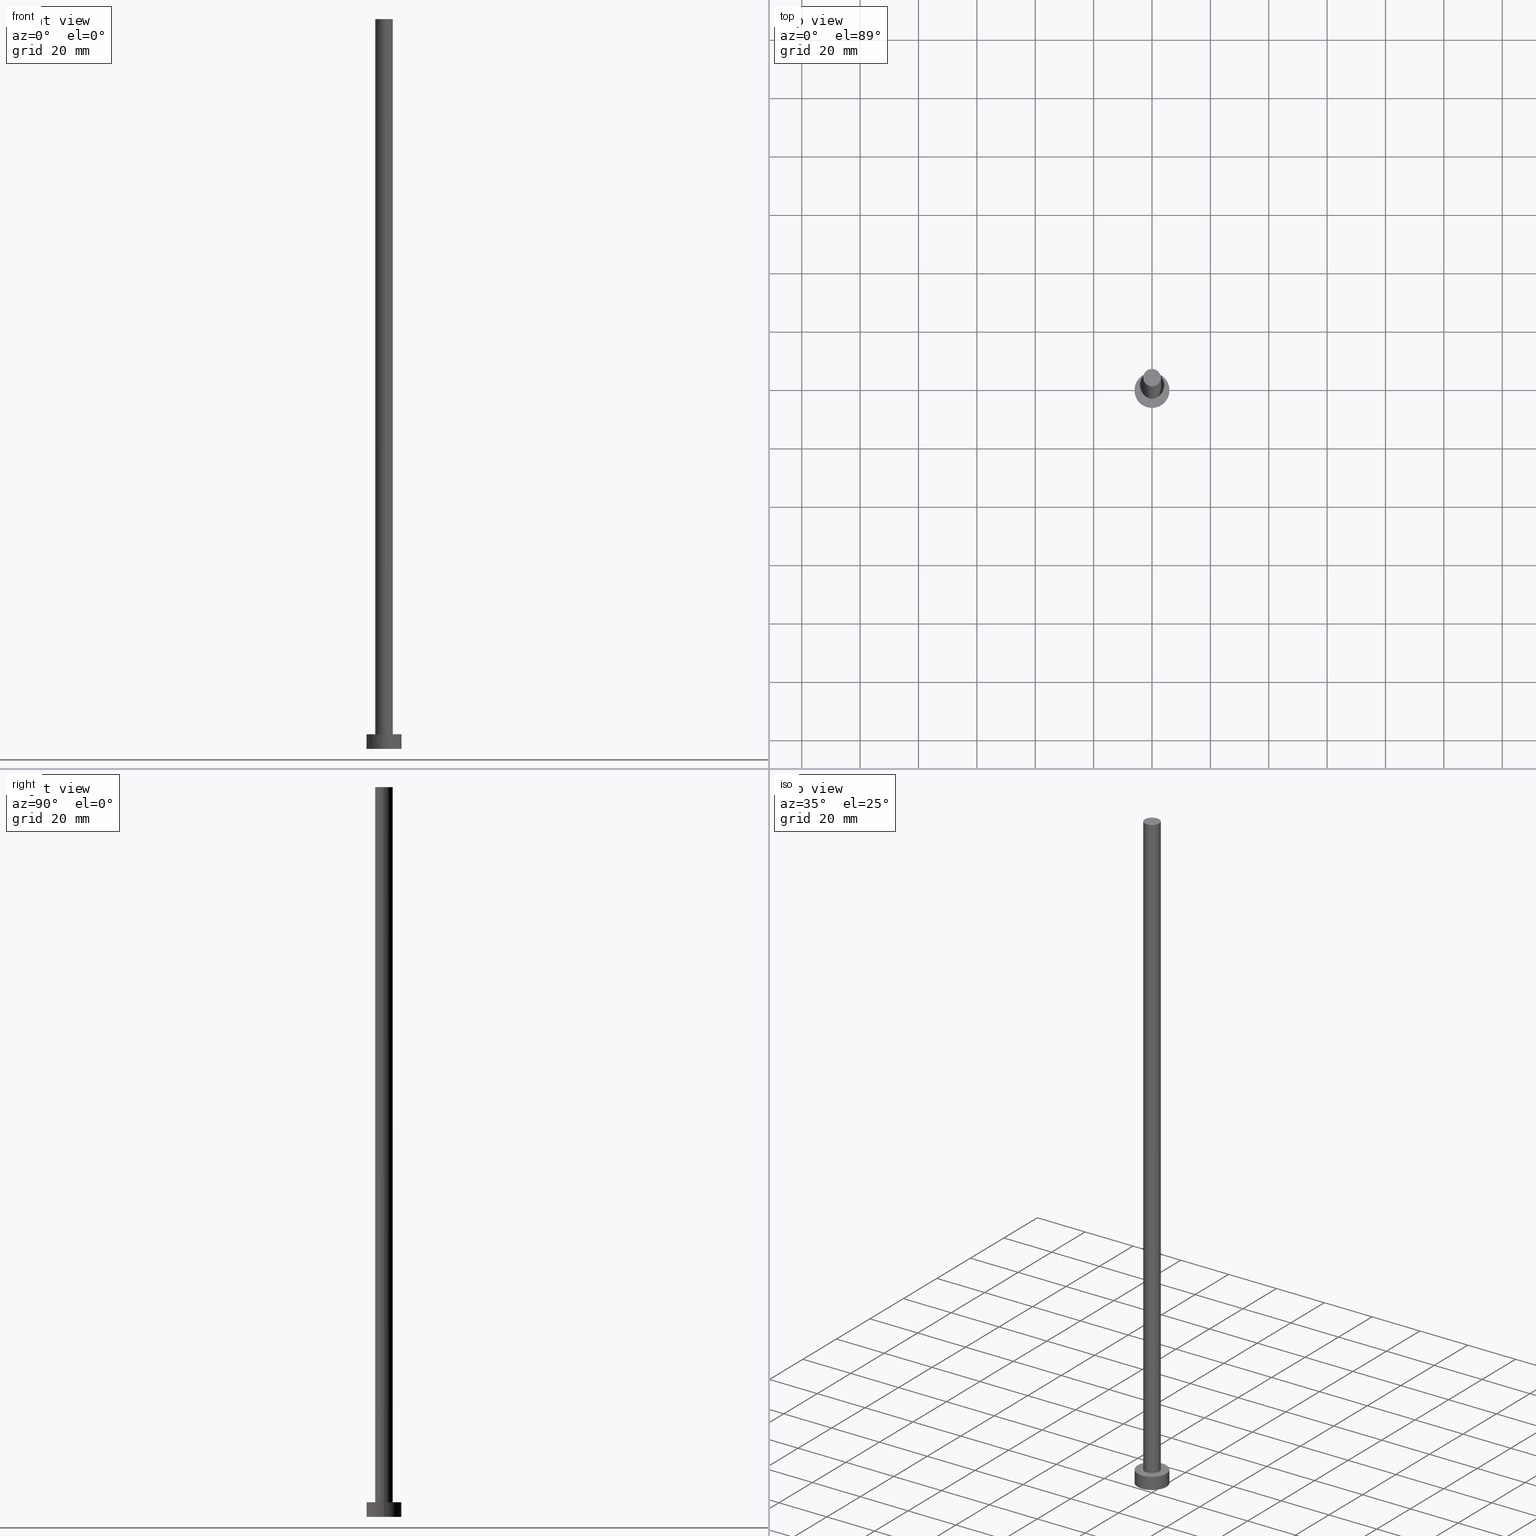
[diagram: canonical four-view strip — front | top / right | iso, engineering-drawing reading convention]
A machine part, canonical four-view strip (front | top / right | iso — engineering-drawing reading convention). The complete STEP part file that produces these views, byte-faithful:
ISO-10303-21;
HEADER;
FILE_DESCRIPTION (( 'STEP AP203' ),
    '1' );
FILE_NAME ('edc5.STEP',
    '2023-02-13T15:44:58',
    ( '' ),
    ( '' ),
    'SwSTEP 2.0',
    'SolidWorks 2019',
    '' );
FILE_SCHEMA (( 'CONFIG_CONTROL_DESIGN' ));
ENDSEC;

DATA;
#1 = AXIS2_PLACEMENT_3D ( 'NONE', #131, #234, #113 ) ;
#2 = DIRECTION ( 'NONE',  ( 0.000000000000000000, 0.000000000000000000, 1.000000000000000000 ) ) ;
#3 = APPROVAL_ROLE ( '' ) ;
#4 = DIRECTION ( 'NONE',  ( -0.000000000000000000, -0.000000000000000000, -1.000000000000000000 ) ) ;
#5 = PERSON_AND_ORGANIZATION ( #231, #48 ) ;
#6 = EDGE_LOOP ( 'NONE', ( #128, #56, #25, #77 ) ) ;
#7 = FACE_OUTER_BOUND ( 'NONE', #148, .T. ) ;
#8 = ORIENTED_EDGE ( 'NONE', *, *, #140, .T. ) ;
#9 = CARTESIAN_POINT ( 'NONE',  ( 3.000000000000000444, 3.673940397442060361E-16, 250.0000000000000000 ) ) ;
#10 = CIRCLE ( 'NONE', #151, 3.000000000000000444 ) ;
#11 = PRODUCT_DEFINITION_SHAPE ( 'NONE', 'NONE',  #154 ) ;
#12 = EDGE_CURVE ( 'NONE', #84, #101, #64, .T. ) ;
#13 = DIRECTION ( 'NONE',  ( 0.000000000000000000, 0.000000000000000000, 1.000000000000000000 ) ) ;
#14 = CARTESIAN_POINT ( 'NONE',  ( -3.000000000000000444, 0.000000000000000000, 250.0000000000000000 ) ) ;
#15 = VECTOR ( 'NONE', #228, 1000.000000000000000 ) ;
#16 = CIRCLE ( 'NONE', #1, 6.000000000000000888 ) ;
#17 = SHAPE_DEFINITION_REPRESENTATION ( #11, #81 ) ;
#18 = ORIENTED_EDGE ( 'NONE', *, *, #215, .F. ) ;
#19 = ADVANCED_FACE ( 'NONE', ( #185 ), #79, .T. ) ;
#20 = CALENDAR_DATE ( 2023, 13, 2 ) ;
#21 = COORDINATED_UNIVERSAL_TIME_OFFSET ( 1, 0, .AHEAD. ) ;
#22 = CARTESIAN_POINT ( 'NONE',  ( 6.000000000000000888, 7.347880794884120722E-16, 5.000000000000000000 ) ) ;
#23 = PERSON_AND_ORGANIZATION ( #231, #48 ) ;
#24 = VERTEX_POINT ( 'NONE', #243 ) ;
#25 = ORIENTED_EDGE ( 'NONE', *, *, #215, .T. ) ;
#26 = AXIS2_PLACEMENT_3D ( 'NONE', #40, #118, #99 ) ;
#27 = ORIENTED_EDGE ( 'NONE', *, *, #191, .F. ) ;
#28 = DIRECTION ( 'NONE',  ( 0.000000000000000000, 0.000000000000000000, 1.000000000000000000 ) ) ;
#29 = APPROVAL ( #163, 'NEUR�EN�' ) ;
#30 = DIRECTION ( 'NONE',  ( -0.000000000000000000, -0.000000000000000000, -1.000000000000000000 ) ) ;
#31 = DIRECTION ( 'NONE',  ( -0.000000000000000000, -0.000000000000000000, -1.000000000000000000 ) ) ;
#32 = PRODUCT_DEFINITION_FORMATION_WITH_SPECIFIED_SOURCE ( 'LIBOVOLN�', '', #214, .NOT_KNOWN. ) ;
#33 = CARTESIAN_POINT ( 'NONE',  ( 0.000000000000000000, 0.000000000000000000, 250.0000000000000000 ) ) ;
#34 = PERSON_AND_ORGANIZATION ( #231, #48 ) ;
#35 = MANIFOLD_SOLID_BREP ( 'P�idat vysunut�m3', #65 ) ;
#36 = LOCAL_TIME ( 16, 44, 58.00000000000000000, #76 ) ;
#37 = APPROVAL_ROLE ( '' ) ;
#38 = EDGE_CURVE ( 'NONE', #101, #54, #155, .T. ) ;
#39 = APPLICATION_PROTOCOL_DEFINITION ( 'international standard', 'config_control_design', 1994, #127 ) ;
#40 = CARTESIAN_POINT ( 'NONE',  ( 0.000000000000000000, 0.000000000000000000, 5.000000000000000000 ) ) ;
#41 = ADVANCED_FACE ( 'NONE', ( #183, #7 ), #172, .T. ) ;
#42 = LOCAL_TIME ( 16, 44, 58.00000000000000000, #147 ) ;
#43 = CYLINDRICAL_SURFACE ( 'NONE', #218, 3.000000000000000444 ) ;
#44 = CARTESIAN_POINT ( 'NONE',  ( -6.000000000000000888, 0.000000000000000000, 0.000000000000000000 ) ) ;
#45 = DIRECTION ( 'NONE',  ( 1.000000000000000000, 0.000000000000000000, 0.000000000000000000 ) ) ;
#46 = EDGE_CURVE ( 'NONE', #97, #235, #247, .T. ) ;
#47 = ORIENTED_EDGE ( 'NONE', *, *, #248, .T. ) ;
#48 = ORGANIZATION ( 'NEUR�EN�', 'NEUR�EN�', '' ) ;
#49 = CARTESIAN_POINT ( 'NONE',  ( 0.000000000000000000, 0.000000000000000000, 0.000000000000000000 ) ) ;
#50 = DIRECTION ( 'NONE',  ( -1.000000000000000000, 0.000000000000000000, 0.000000000000000000 ) ) ;
#51 = AXIS2_PLACEMENT_3D ( 'NONE', #209, #4, #188 ) ;
#52 = SECURITY_CLASSIFICATION ( '', '', #186 ) ;
#53 = CARTESIAN_POINT ( 'NONE',  ( 6.000000000000000888, 7.347880794884120722E-16, 5.000000000000000000 ) ) ;
#54 = VERTEX_POINT ( 'NONE', #44 ) ;
#55 = PERSON_AND_ORGANIZATION_ROLE ( 'design_supplier' ) ;
#56 = ORIENTED_EDGE ( 'NONE', *, *, #233, .F. ) ;
#57 = ADVANCED_FACE ( 'NONE', ( #143 ), #220, .T. ) ;
#58 = CALENDAR_DATE ( 2023, 13, 2 ) ;
#59 = DIRECTION ( 'NONE',  ( 0.000000000000000000, 0.000000000000000000, 1.000000000000000000 ) ) ;
#60 = APPROVAL_ROLE ( '' ) ;
#61 = EDGE_LOOP ( 'NONE', ( #141, #47 ) ) ;
#62 = ORIENTED_EDGE ( 'NONE', *, *, #191, .T. ) ;
#63 = EDGE_CURVE ( 'NONE', #84, #121, #103, .T. ) ;
#64 = LINE ( 'NONE', #22, #153 ) ;
#65 = CLOSED_SHELL ( 'NONE', ( #252, #19, #57, #41, #130, #83, #122 ) ) ;
#66 = AXIS2_PLACEMENT_3D ( 'NONE', #164, #236, #238 ) ;
#67 = DIRECTION ( 'NONE',  ( 0.000000000000000000, 0.000000000000000000, 1.000000000000000000 ) ) ;
#68 = APPROVAL_PERSON_ORGANIZATION ( #93, #29, #60 ) ;
#69 = UNCERTAINTY_MEASURE_WITH_UNIT (LENGTH_MEASURE( 1.000000000000000082E-05 ), #175, 'distance_accuracy_value', 'NONE');
#70 = LINE ( 'NONE', #9, #226 ) ;
#71 = CC_DESIGN_PERSON_AND_ORGANIZATION_ASSIGNMENT ( #217, #184, ( #214 ) ) ;
#72 = DATE_TIME_ROLE ( 'classification_date' ) ;
#73 = ORIENTED_EDGE ( 'NONE', *, *, #248, .F. ) ;
#74 = CIRCLE ( 'NONE', #240, 6.000000000000000888 ) ;
#75 = DIRECTION ( 'NONE',  ( -0.000000000000000000, -0.000000000000000000, -1.000000000000000000 ) ) ;
#76 = COORDINATED_UNIVERSAL_TIME_OFFSET ( 1, 0, .AHEAD. ) ;
#77 = ORIENTED_EDGE ( 'NONE', *, *, #207, .T. ) ;
#78 = DATE_AND_TIME ( #94, #119 ) ;
#79 = CYLINDRICAL_SURFACE ( 'NONE', #51, 6.000000000000000888 ) ;
#80 = AXIS2_PLACEMENT_3D ( 'NONE', #224, #2, #124 ) ;
#81 = ADVANCED_BREP_SHAPE_REPRESENTATION ( 'edc5', ( #35, #152 ), #104 ) ;
#82 = ORIENTED_EDGE ( 'NONE', *, *, #63, .F. ) ;
#83 = ADVANCED_FACE ( 'NONE', ( #223 ), #43, .T. ) ;
#84 = VERTEX_POINT ( 'NONE', #53 ) ;
#85 = APPLICATION_CONTEXT ( 'configuration controlled 3d designs of mechanical parts and assemblies' ) ;
#86 = DIRECTION ( 'NONE',  ( 1.000000000000000000, 0.000000000000000000, 0.000000000000000000 ) ) ;
#87 = AXIS2_PLACEMENT_3D ( 'NONE', #114, #212, #178 ) ;
#88 = CYLINDRICAL_SURFACE ( 'NONE', #158, 3.000000000000000444 ) ;
#89 = CC_DESIGN_APPROVAL ( #29, ( #154 ) ) ;
#90 = DIRECTION ( 'NONE',  ( 0.000000000000000000, 0.000000000000000000, 1.000000000000000000 ) ) ;
#91 = DIRECTION ( 'NONE',  ( -1.000000000000000000, 0.000000000000000000, 0.000000000000000000 ) ) ;
#92 = CARTESIAN_POINT ( 'NONE',  ( 0.000000000000000000, 0.000000000000000000, 0.000000000000000000 ) ) ;
#93 = PERSON_AND_ORGANIZATION ( #231, #48 ) ;
#94 = CALENDAR_DATE ( 2023, 13, 2 ) ;
#95 = CC_DESIGN_PERSON_AND_ORGANIZATION_ASSIGNMENT ( #96, #55, ( #32 ) ) ;
#96 = PERSON_AND_ORGANIZATION ( #231, #48 ) ;
#97 = VERTEX_POINT ( 'NONE', #156 ) ;
#98 = DATE_AND_TIME ( #20, #253 ) ;
#99 = DIRECTION ( 'NONE',  ( -1.000000000000000000, 0.000000000000000000, 0.000000000000000000 ) ) ;
#100 = DATE_TIME_ROLE ( 'creation_date' ) ;
#101 = VERTEX_POINT ( 'NONE', #232 ) ;
#102 = ORIENTED_EDGE ( 'NONE', *, *, #177, .F. ) ;
#103 = CIRCLE ( 'NONE', #205, 6.000000000000000888 ) ;
#104 =( GEOMETRIC_REPRESENTATION_CONTEXT ( 3 ) GLOBAL_UNCERTAINTY_ASSIGNED_CONTEXT ( ( #69 ) ) GLOBAL_UNIT_ASSIGNED_CONTEXT ( ( #175, #249, #179 ) ) REPRESENTATION_CONTEXT ( 'NONE', 'WORKASPACE' ) );
#105 = ORIENTED_EDGE ( 'NONE', *, *, #233, .T. ) ;
#106 = CC_DESIGN_PERSON_AND_ORGANIZATION_ASSIGNMENT ( #115, #199, ( #52 ) ) ;
#107 = AXIS2_PLACEMENT_3D ( 'NONE', #196, #109, #210 ) ;
#108 = PLANE ( 'NONE',  #125 ) ;
#109 = DIRECTION ( 'NONE',  ( 0.000000000000000000, 0.000000000000000000, 1.000000000000000000 ) ) ;
#110 = APPROVAL ( #181, 'NEUR�EN�' ) ;
#111 = DIRECTION ( 'NONE',  ( 0.000000000000000000, 0.000000000000000000, 1.000000000000000000 ) ) ;
#112 = APPROVAL_PERSON_ORGANIZATION ( #117, #133, #3 ) ;
#113 = DIRECTION ( 'NONE',  ( 1.000000000000000000, 0.000000000000000000, 0.000000000000000000 ) ) ;
#114 = CARTESIAN_POINT ( 'NONE',  ( 0.000000000000000000, 0.000000000000000000, 250.0000000000000000 ) ) ;
#115 = PERSON_AND_ORGANIZATION ( #231, #48 ) ;
#116 = PERSON_AND_ORGANIZATION_ROLE ( 'creator' ) ;
#117 = PERSON_AND_ORGANIZATION ( #231, #48 ) ;
#118 = DIRECTION ( 'NONE',  ( -0.000000000000000000, -0.000000000000000000, -1.000000000000000000 ) ) ;
#119 = LOCAL_TIME ( 16, 44, 58.00000000000000000, #139 ) ;
#120 = APPROVAL_DATE_TIME ( #136, #29 ) ;
#121 = VERTEX_POINT ( 'NONE', #180 ) ;
#122 = ADVANCED_FACE ( 'NONE', ( #213 ), #134, .T. ) ;
#123 = ORIENTED_EDGE ( 'NONE', *, *, #46, .F. ) ;
#124 = DIRECTION ( 'NONE',  ( 1.000000000000000000, 0.000000000000000000, -0.000000000000000000 ) ) ;
#125 = AXIS2_PLACEMENT_3D ( 'NONE', #49, #90, #157 ) ;
#126 = CIRCLE ( 'NONE', #208, 3.000000000000000444 ) ;
#127 = APPLICATION_CONTEXT ( 'configuration controlled 3d designs of mechanical parts and assemblies' ) ;
#128 = ORIENTED_EDGE ( 'NONE', *, *, #12, .F. ) ;
#129 = CARTESIAN_POINT ( 'NONE',  ( 3.000000000000000444, 3.673940397442060361E-16, 250.0000000000000000 ) ) ;
#130 = ADVANCED_FACE ( 'NONE', ( #176 ), #108, .F. ) ;
#131 = CARTESIAN_POINT ( 'NONE',  ( 0.000000000000000000, 0.000000000000000000, 5.000000000000000000 ) ) ;
#132 = APPLICATION_PROTOCOL_DEFINITION ( 'international standard', 'config_control_design', 1994, #85 ) ;
#133 = APPROVAL ( #168, 'NEUR�EN�' ) ;
#134 = PLANE ( 'NONE',  #87 ) ;
#135 = CARTESIAN_POINT ( 'NONE',  ( 0.000000000000000000, 0.000000000000000000, 250.0000000000000000 ) ) ;
#136 = DATE_AND_TIME ( #58, #42 ) ;
#137 = AXIS2_PLACEMENT_3D ( 'NONE', #204, #28, #45 ) ;
#138 = EDGE_LOOP ( 'NONE', ( #102, #123, #62, #241 ) ) ;
#139 = COORDINATED_UNIVERSAL_TIME_OFFSET ( 1, 0, .AHEAD. ) ;
#140 = EDGE_CURVE ( 'NONE', #201, #24, #10, .T. ) ;
#141 = ORIENTED_EDGE ( 'NONE', *, *, #46, .T. ) ;
#142 = MECHANICAL_CONTEXT ( 'NONE', #85, 'mechanical' ) ;
#143 = FACE_OUTER_BOUND ( 'NONE', #6, .T. ) ;
#144 = CALENDAR_DATE ( 2023, 13, 2 ) ;
#145 = DIRECTION ( 'NONE',  ( 1.000000000000000000, 0.000000000000000000, 0.000000000000000000 ) ) ;
#146 = CC_DESIGN_APPROVAL ( #133, ( #52 ) ) ;
#147 = COORDINATED_UNIVERSAL_TIME_OFFSET ( 1, 0, .AHEAD. ) ;
#148 = EDGE_LOOP ( 'NONE', ( #105, #244 ) ) ;
#149 = ORIENTED_EDGE ( 'NONE', *, *, #38, .F. ) ;
#150 = ORIENTED_EDGE ( 'NONE', *, *, #38, .T. ) ;
#151 = AXIS2_PLACEMENT_3D ( 'NONE', #254, #111, #250 ) ;
#152 = AXIS2_PLACEMENT_3D ( 'NONE', #239, #182, #222 ) ;
#153 = VECTOR ( 'NONE', #75, 1000.000000000000000 ) ;
#154 = PRODUCT_DEFINITION ( 'NEZN�M�', '', #32, #221 ) ;
#155 = CIRCLE ( 'NONE', #137, 6.000000000000000888 ) ;
#156 = CARTESIAN_POINT ( 'NONE',  ( -3.000000000000000444, 0.000000000000000000, 250.0000000000000000 ) ) ;
#157 = DIRECTION ( 'NONE',  ( 1.000000000000000000, 0.000000000000000000, -0.000000000000000000 ) ) ;
#158 = AXIS2_PLACEMENT_3D ( 'NONE', #229, #192, #91 ) ;
#159 = DIRECTION ( 'NONE',  ( 1.000000000000000000, 0.000000000000000000, 0.000000000000000000 ) ) ;
#160 = EDGE_CURVE ( 'NONE', #24, #201, #211, .T. ) ;
#161 = CC_DESIGN_APPROVAL ( #110, ( #32 ) ) ;
#162 = EDGE_LOOP ( 'NONE', ( #82, #203, #150, #18 ) ) ;
#163 = APPROVAL_STATUS ( 'not_yet_approved' ) ;
#164 = CARTESIAN_POINT ( 'NONE',  ( 0.000000000000000000, 0.000000000000000000, 250.0000000000000000 ) ) ;
#165 = PERSON_AND_ORGANIZATION_ROLE ( 'creator' ) ;
#166 = CARTESIAN_POINT ( 'NONE',  ( 0.000000000000000000, 0.000000000000000000, 5.000000000000000000 ) ) ;
#167 = CC_DESIGN_DATE_AND_TIME_ASSIGNMENT ( #78, #72, ( #52 ) ) ;
#168 = APPROVAL_STATUS ( 'not_yet_approved' ) ;
#169 = CC_DESIGN_SECURITY_CLASSIFICATION ( #52, ( #32 ) ) ;
#170 = EDGE_LOOP ( 'NONE', ( #189, #225 ) ) ;
#171 = LOCAL_TIME ( 16, 44, 58.00000000000000000, #21 ) ;
#172 = PLANE ( 'NONE',  #80 ) ;
#173 = EDGE_LOOP ( 'NONE', ( #73, #187, #8, #27 ) ) ;
#174 = APPROVAL_PERSON_ORGANIZATION ( #5, #110, #37 ) ;
#175 =( LENGTH_UNIT ( ) NAMED_UNIT ( * ) SI_UNIT ( .MILLI., .METRE. ) );
#176 = FACE_OUTER_BOUND ( 'NONE', #227, .T. ) ;
#177 = EDGE_CURVE ( 'NONE', #235, #201, #70, .T. ) ;
#178 = DIRECTION ( 'NONE',  ( 1.000000000000000000, 0.000000000000000000, -0.000000000000000000 ) ) ;
#179 =( NAMED_UNIT ( * ) SI_UNIT ( $, .STERADIAN. ) SOLID_ANGLE_UNIT ( ) );
#180 = CARTESIAN_POINT ( 'NONE',  ( -6.000000000000000888, 0.000000000000000000, 5.000000000000000000 ) ) ;
#181 = APPROVAL_STATUS ( 'not_yet_approved' ) ;
#182 = DIRECTION ( 'NONE',  ( 0.000000000000000000, 0.000000000000000000, 1.000000000000000000 ) ) ;
#183 = FACE_BOUND ( 'NONE', #170, .T. ) ;
#184 = PERSON_AND_ORGANIZATION_ROLE ( 'design_owner' ) ;
#185 = FACE_OUTER_BOUND ( 'NONE', #162, .T. ) ;
#186 = SECURITY_CLASSIFICATION_LEVEL ( 'unclassified' ) ;
#187 = ORIENTED_EDGE ( 'NONE', *, *, #177, .T. ) ;
#188 = DIRECTION ( 'NONE',  ( -1.000000000000000000, 0.000000000000000000, 0.000000000000000000 ) ) ;
#189 = ORIENTED_EDGE ( 'NONE', *, *, #160, .F. ) ;
#190 = CC_DESIGN_DATE_AND_TIME_ASSIGNMENT ( #202, #100, ( #154 ) ) ;
#191 = EDGE_CURVE ( 'NONE', #97, #24, #246, .T. ) ;
#192 = DIRECTION ( 'NONE',  ( -0.000000000000000000, -0.000000000000000000, -1.000000000000000000 ) ) ;
#193 = CARTESIAN_POINT ( 'NONE',  ( 3.000000000000000444, 3.673940397442060361E-16, 5.000000000000000000 ) ) ;
#194 = FACE_OUTER_BOUND ( 'NONE', #173, .T. ) ;
#195 = DIRECTION ( 'NONE',  ( -0.000000000000000000, -0.000000000000000000, -1.000000000000000000 ) ) ;
#196 = CARTESIAN_POINT ( 'NONE',  ( 0.000000000000000000, 0.000000000000000000, 5.000000000000000000 ) ) ;
#197 = CALENDAR_DATE ( 2023, 13, 2 ) ;
#198 = PRODUCT_RELATED_PRODUCT_CATEGORY ( 'detail', '', ( #214 ) ) ;
#199 = PERSON_AND_ORGANIZATION_ROLE ( 'classification_officer' ) ;
#200 = DATE_AND_TIME ( #197, #36 ) ;
#201 = VERTEX_POINT ( 'NONE', #193 ) ;
#202 = DATE_AND_TIME ( #144, #171 ) ;
#203 = ORIENTED_EDGE ( 'NONE', *, *, #12, .T. ) ;
#204 = CARTESIAN_POINT ( 'NONE',  ( 0.000000000000000000, 0.000000000000000000, 0.000000000000000000 ) ) ;
#205 = AXIS2_PLACEMENT_3D ( 'NONE', #166, #59, #145 ) ;
#206 = ORIENTED_EDGE ( 'NONE', *, *, #207, .F. ) ;
#207 = EDGE_CURVE ( 'NONE', #54, #101, #74, .T. ) ;
#208 = AXIS2_PLACEMENT_3D ( 'NONE', #135, #13, #86 ) ;
#209 = CARTESIAN_POINT ( 'NONE',  ( 0.000000000000000000, 0.000000000000000000, 5.000000000000000000 ) ) ;
#210 = DIRECTION ( 'NONE',  ( 1.000000000000000000, 0.000000000000000000, 0.000000000000000000 ) ) ;
#211 = CIRCLE ( 'NONE', #107, 3.000000000000000444 ) ;
#212 = DIRECTION ( 'NONE',  ( 0.000000000000000000, 0.000000000000000000, 1.000000000000000000 ) ) ;
#213 = FACE_OUTER_BOUND ( 'NONE', #61, .T. ) ;
#214 = PRODUCT ( 'edc5', 'edc5', '', ( #142 ) ) ;
#215 = EDGE_CURVE ( 'NONE', #121, #54, #251, .T. ) ;
#216 = CARTESIAN_POINT ( 'NONE',  ( -6.000000000000000888, 0.000000000000000000, 5.000000000000000000 ) ) ;
#217 = PERSON_AND_ORGANIZATION ( #231, #48 ) ;
#218 = AXIS2_PLACEMENT_3D ( 'NONE', #33, #30, #50 ) ;
#219 = APPROVAL_DATE_TIME ( #200, #133 ) ;
#220 = CYLINDRICAL_SURFACE ( 'NONE', #26, 6.000000000000000888 ) ;
#221 = DESIGN_CONTEXT ( 'detailed design', #127, 'design' ) ;
#222 = DIRECTION ( 'NONE',  ( 1.000000000000000000, 0.000000000000000000, 0.000000000000000000 ) ) ;
#223 = FACE_OUTER_BOUND ( 'NONE', #138, .T. ) ;
#224 = CARTESIAN_POINT ( 'NONE',  ( 0.000000000000000000, 0.000000000000000000, 5.000000000000000000 ) ) ;
#225 = ORIENTED_EDGE ( 'NONE', *, *, #140, .F. ) ;
#226 = VECTOR ( 'NONE', #31, 1000.000000000000000 ) ;
#227 = EDGE_LOOP ( 'NONE', ( #206, #149 ) ) ;
#228 = DIRECTION ( 'NONE',  ( -0.000000000000000000, -0.000000000000000000, -1.000000000000000000 ) ) ;
#229 = CARTESIAN_POINT ( 'NONE',  ( 0.000000000000000000, 0.000000000000000000, 250.0000000000000000 ) ) ;
#230 = CC_DESIGN_PERSON_AND_ORGANIZATION_ASSIGNMENT ( #23, #116, ( #32 ) ) ;
#231 = PERSON ( 'NEUR�EN�', 'NEUR�EN�', 'NEUR�EN�', ('NEUR�EN�'), ('NEUR�EN�'), ('NEUR�EN�') ) ;
#232 = CARTESIAN_POINT ( 'NONE',  ( 6.000000000000000888, 7.347880794884120722E-16, 0.000000000000000000 ) ) ;
#233 = EDGE_CURVE ( 'NONE', #121, #84, #16, .T. ) ;
#234 = DIRECTION ( 'NONE',  ( 0.000000000000000000, 0.000000000000000000, 1.000000000000000000 ) ) ;
#235 = VERTEX_POINT ( 'NONE', #129 ) ;
#236 = DIRECTION ( 'NONE',  ( 0.000000000000000000, 0.000000000000000000, 1.000000000000000000 ) ) ;
#237 = COORDINATED_UNIVERSAL_TIME_OFFSET ( 1, 0, .AHEAD. ) ;
#238 = DIRECTION ( 'NONE',  ( 1.000000000000000000, 0.000000000000000000, 0.000000000000000000 ) ) ;
#239 = CARTESIAN_POINT ( 'NONE',  ( 0.000000000000000000, 0.000000000000000000, 0.000000000000000000 ) ) ;
#240 = AXIS2_PLACEMENT_3D ( 'NONE', #92, #67, #159 ) ;
#241 = ORIENTED_EDGE ( 'NONE', *, *, #160, .T. ) ;
#242 = CC_DESIGN_PERSON_AND_ORGANIZATION_ASSIGNMENT ( #34, #165, ( #154 ) ) ;
#243 = CARTESIAN_POINT ( 'NONE',  ( -3.000000000000000444, 0.000000000000000000, 5.000000000000000000 ) ) ;
#244 = ORIENTED_EDGE ( 'NONE', *, *, #63, .T. ) ;
#245 = VECTOR ( 'NONE', #195, 1000.000000000000000 ) ;
#246 = LINE ( 'NONE', #14, #15 ) ;
#247 = CIRCLE ( 'NONE', #66, 3.000000000000000444 ) ;
#248 = EDGE_CURVE ( 'NONE', #235, #97, #126, .T. ) ;
#249 =( NAMED_UNIT ( * ) PLANE_ANGLE_UNIT ( ) SI_UNIT ( $, .RADIAN. ) );
#250 = DIRECTION ( 'NONE',  ( 1.000000000000000000, 0.000000000000000000, 0.000000000000000000 ) ) ;
#251 = LINE ( 'NONE', #216, #245 ) ;
#252 = ADVANCED_FACE ( 'NONE', ( #194 ), #88, .T. ) ;
#253 = LOCAL_TIME ( 16, 44, 58.00000000000000000, #237 ) ;
#254 = CARTESIAN_POINT ( 'NONE',  ( 0.000000000000000000, 0.000000000000000000, 5.000000000000000000 ) ) ;
#255 = APPROVAL_DATE_TIME ( #98, #110 ) ;
ENDSEC;
END-ISO-10303-21;
